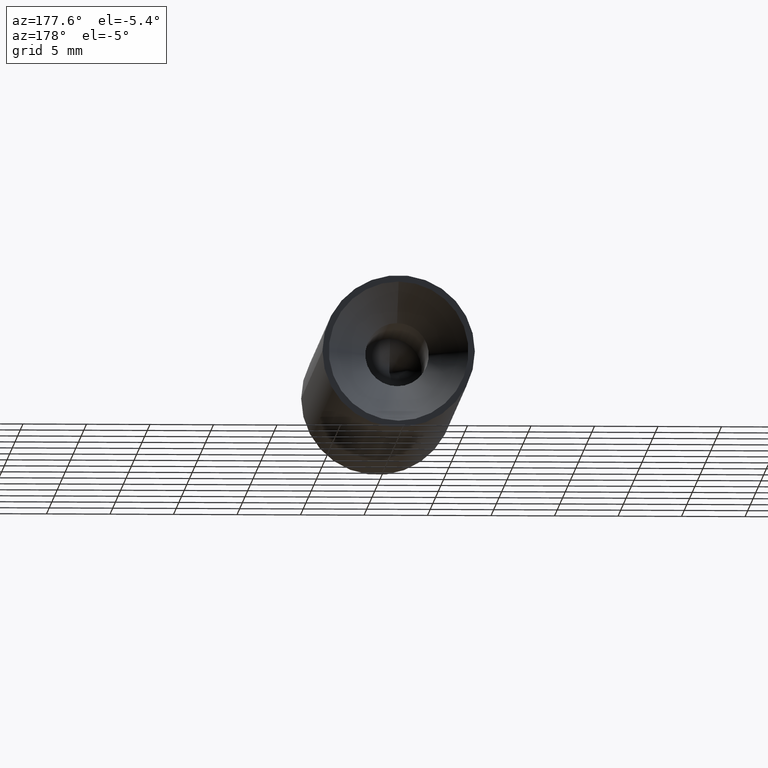
[diagram: clean part render]
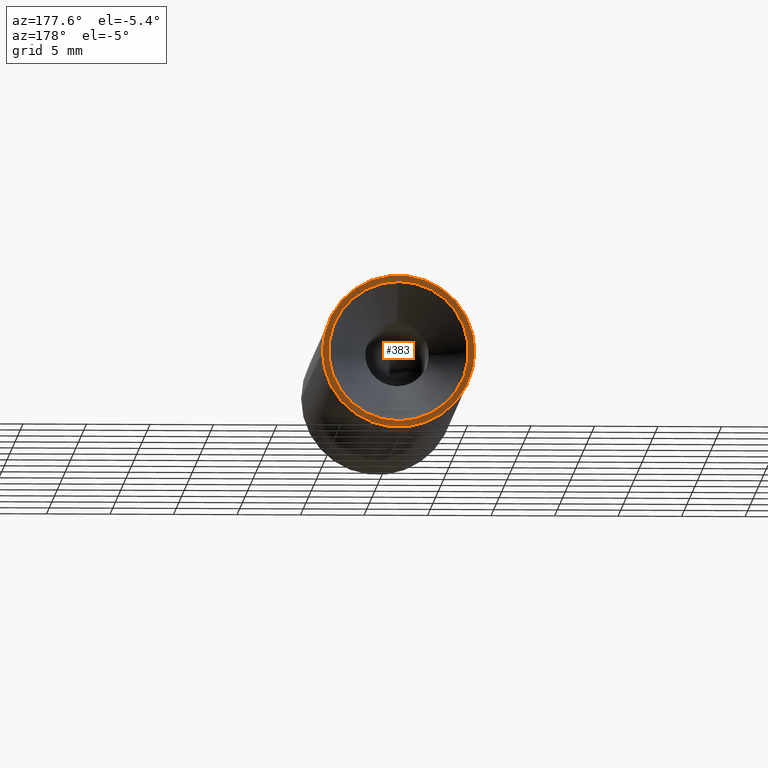
[diagram: same view with one face highlighted and labeled with its STEP entity id]
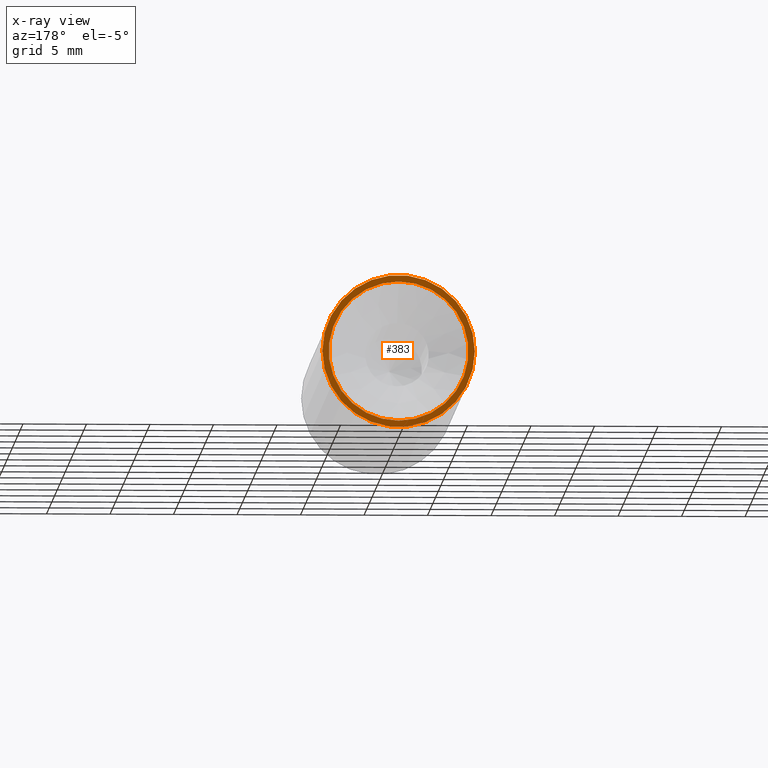
[diagram: x-ray of the same camera — body ghosted, the highlighted face saturated]
A machine part, auxiliary view. The second image highlights one B-rep face of the part: STEP entity #383.
The next image is the same camera in x-ray: the body ghosted, the highlighted face saturated — about 0% of this face is hidden behind the body in this view.
In plain terms, the highlighted planar face has unit normal (-0, 1, 0).
Its self-contained STEP definition (entity closure, byte-faithful):
#383 = ADVANCED_FACE ( 'NONE', ( #3855, #11949 ), #7901, .T. ) ;
#601 = DIRECTION ( 'NONE',  ( 1.000000000000000000, 0.000000000000000000, 0.000000000000000000 ) ) ;
#1162 = DIRECTION ( 'NONE',  ( -0.000000000000000000, 1.000000000000000000, -0.000000000000000000 ) ) ;
#1332 = CIRCLE ( 'NONE', #4827, 5.500000000000000000 ) ;
#1367 = EDGE_CURVE ( 'NONE', #3973, #3973, #3351, .T. ) ;
#2608 = DIRECTION ( 'NONE',  ( 3.501690807976792771E-33, -1.000000000000000000, -0.000000000000000000 ) ) ;
#3134 = EDGE_CURVE ( 'NONE', #9940, #9940, #1332, .T. ) ;
#3329 = CARTESIAN_POINT ( 'NONE',  ( -1.400676323190717163E-31, 40.00000000000000000, 0.000000000000000000 ) ) ;
#3351 = CIRCLE ( 'NONE', #12670, 6.000000000000006217 ) ;
#3855 = FACE_BOUND ( 'NONE', #4083, .T. ) ;
#3868 = EDGE_LOOP ( 'NONE', ( #12948 ) ) ;
#3973 = VERTEX_POINT ( 'NONE', #12072 ) ;
#4083 = EDGE_LOOP ( 'NONE', ( #12840 ) ) ;
#4709 = DIRECTION ( 'NONE',  ( -3.501690807976792771E-33, 1.000000000000000000, 0.000000000000000000 ) ) ;
#4827 = AXIS2_PLACEMENT_3D ( 'NONE', #3329, #1162, #10728 ) ;
#7901 = PLANE ( 'NONE',  #12010 ) ;
#9940 = VERTEX_POINT ( 'NONE', #13173 ) ;
#10038 = DIRECTION ( 'NONE',  ( -1.000000000000000000, -3.501690807976792771E-33, 0.000000000000000000 ) ) ;
#10728 = DIRECTION ( 'NONE',  ( 0.000000000000000000, 0.000000000000000000, 1.000000000000000000 ) ) ;
#11125 = CARTESIAN_POINT ( 'NONE',  ( 3.678551554400752517E-65, 40.00000000000000000, 0.000000000000000000 ) ) ;
#11949 = FACE_OUTER_BOUND ( 'NONE', #3868, .T. ) ;
#12010 = AXIS2_PLACEMENT_3D ( 'NONE', #11125, #4709, #10038 ) ;
#12072 = CARTESIAN_POINT ( 'NONE',  ( 6.000000000000006217, 40.00000000000000000, 0.000000000000000000 ) ) ;
#12670 = AXIS2_PLACEMENT_3D ( 'NONE', #13253, #2608, #601 ) ;
#12840 = ORIENTED_EDGE ( 'NONE', *, *, #3134, .F. ) ;
#12948 = ORIENTED_EDGE ( 'NONE', *, *, #1367, .F. ) ;
#13173 = CARTESIAN_POINT ( 'NONE',  ( -1.400676323190717163E-31, 40.00000000000000000, 5.500000000000000000 ) ) ;
#13253 = CARTESIAN_POINT ( 'NONE',  ( 0.000000000000000000, 40.00000000000000000, 0.000000000000000000 ) ) ;